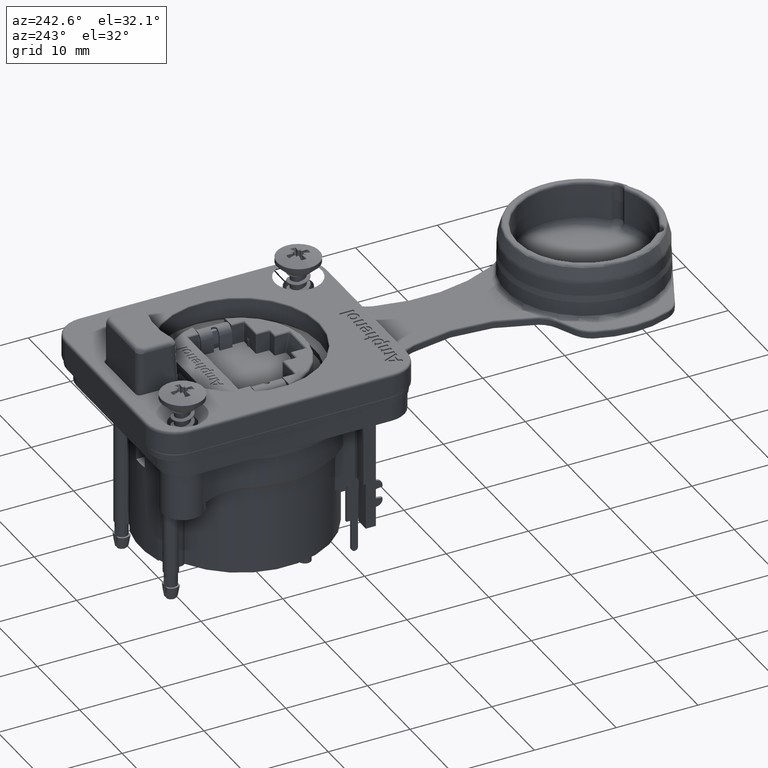
[diagram: clean part render]
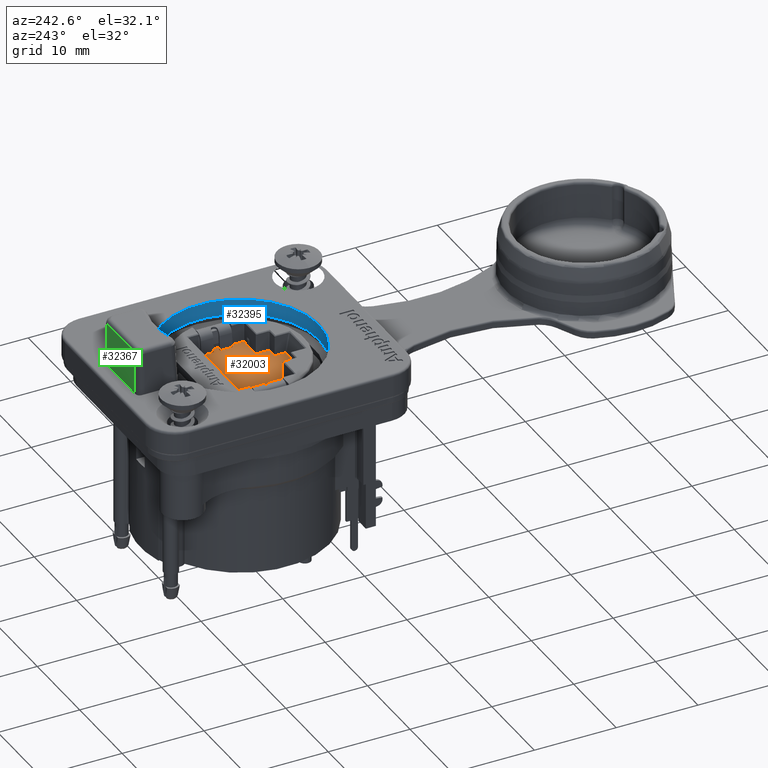
[diagram: same view with three faces highlighted in distinct colors, each labeled with its STEP entity id]
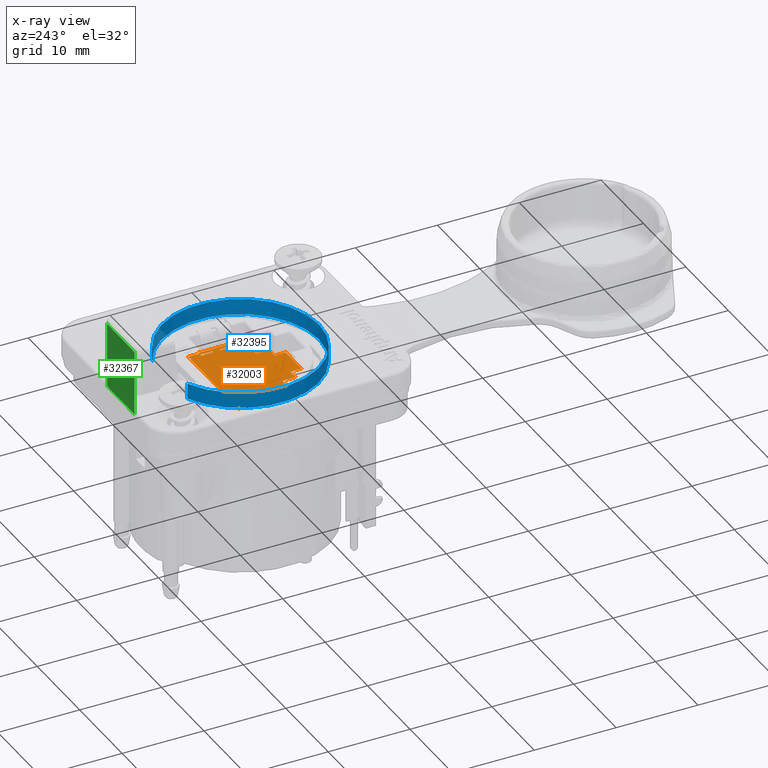
[diagram: x-ray of the same camera — body ghosted, the three highlighted faces saturated]
A machine part, auxiliary view with three faces highlighted in distinct colors.
The next image is the same camera in x-ray (body ghosted, the three faces saturated) — at least one of them is partly hidden behind the body in this view.
Their STEP definitions:

[orange] entity #32003 — the highlighted planar face has unit normal (-0, -0, 1).
#2870=ELLIPSE('',#33870,0.121851193426289,0.12);
#2871=ELLIPSE('',#33871,0.121851193426289,0.12);
#2910=FACE_BOUND('',#4781,.T.);
#2911=FACE_BOUND('',#4782,.T.);
#2912=FACE_BOUND('',#4783,.T.);
#2913=FACE_BOUND('',#4784,.T.);
#2999=FACE_OUTER_BOUND('',#4780,.T.);
#4780=EDGE_LOOP('',(#21763,#21764,#21765,#21766,#21767,#21768,#21769,#21770,
#21771,#21772,#21773,#21774,#21775,#21776,#21777,#21778,#21779,#21780,#21781,
#21782,#21783,#21784,#21785,#21786,#21787,#21788,#21789,#21790,#21791,#21792,
#21793,#21794,#21795,#21796,#21797,#21798,#21799,#21800,#21801));
#4781=EDGE_LOOP('',(#21802,#21803,#21804,#21805));
#4782=EDGE_LOOP('',(#21806,#21807,#21808,#21809));
#4783=EDGE_LOOP('',(#21810,#21811,#21812,#21813));
#4784=EDGE_LOOP('',(#21814,#21815,#21816,#21817));
#8258=LINE('',#43236,#10582);
#8259=LINE('',#43238,#10583);
#8260=LINE('',#43240,#10584);
#8261=LINE('',#43242,#10585);
#8262=LINE('',#43244,#10586);
#8263=LINE('',#43248,#10587);
#8264=LINE('',#43252,#10588);
#8265=LINE('',#43256,#10589);
#8266=LINE('',#43260,#10590);
#8267=LINE('',#43264,#10591);
#8268=LINE('',#43268,#10592);
#8269=LINE('',#43272,#10593);
#8270=LINE('',#43274,#10594);
#8271=LINE('',#43278,#10595);
#8272=LINE('',#43282,#10596);
#8273=LINE('',#43286,#10597);
#8274=LINE('',#43290,#10598);
#8275=LINE('',#43292,#10599);
#8276=LINE('',#43294,#10600);
#8277=LINE('',#43296,#10601);
#8278=LINE('',#43298,#10602);
#8279=LINE('',#43302,#10603);
#8280=LINE('',#43306,#10604);
#8281=LINE('',#43310,#10605);
#8282=LINE('',#43314,#10606);
#8283=LINE('',#43316,#10607);
#8284=LINE('',#43318,#10608);
#8285=LINE('',#43319,#10609);
#8286=LINE('',#43322,#10610);
#8287=LINE('',#43324,#10611);
#8288=LINE('',#43326,#10612);
#8289=LINE('',#43327,#10613);
#8290=LINE('',#43330,#10614);
#8291=LINE('',#43332,#10615);
#8292=LINE('',#43334,#10616);
#8293=LINE('',#43335,#10617);
#8294=LINE('',#43338,#10618);
#8295=LINE('',#43340,#10619);
#8296=LINE('',#43342,#10620);
#8297=LINE('',#43343,#10621);
#10582=VECTOR('',#36131,10.);
#10583=VECTOR('',#36132,10.);
#10584=VECTOR('',#36133,10.);
#10585=VECTOR('',#36134,10.);
#10586=VECTOR('',#36135,10.);
#10587=VECTOR('',#36138,10.);
#10588=VECTOR('',#36141,10.);
#10589=VECTOR('',#36144,10.);
#10590=VECTOR('',#36147,10.);
#10591=VECTOR('',#36150,10.);
#10592=VECTOR('',#36153,10.);
#10593=VECTOR('',#36156,10.);
#10594=VECTOR('',#36157,10.);
#10595=VECTOR('',#36160,10.);
#10596=VECTOR('',#36163,10.);
#10597=VECTOR('',#36166,10.);
#10598=VECTOR('',#36169,10.);
#10599=VECTOR('',#36170,10.);
#10600=VECTOR('',#36171,10.);
#10601=VECTOR('',#36172,10.);
#10602=VECTOR('',#36173,10.);
#10603=VECTOR('',#36176,10.);
#10604=VECTOR('',#36179,10.);
#10605=VECTOR('',#36182,10.);
#10606=VECTOR('',#36185,10.);
#10607=VECTOR('',#36186,10.);
#10608=VECTOR('',#36187,10.);
#10609=VECTOR('',#36188,10.);
#10610=VECTOR('',#36189,10.);
#10611=VECTOR('',#36190,10.);
#10612=VECTOR('',#36191,10.);
#10613=VECTOR('',#36192,10.);
#10614=VECTOR('',#36193,10.);
#10615=VECTOR('',#36194,10.);
#10616=VECTOR('',#36195,10.);
#10617=VECTOR('',#36196,10.);
#10618=VECTOR('',#36197,10.);
#10619=VECTOR('',#36198,10.);
#10620=VECTOR('',#36199,10.);
#10621=VECTOR('',#36200,10.);
#12904=CIRCLE('',#33865,0.12);
#12905=CIRCLE('',#33866,0.6);
#12906=CIRCLE('',#33867,0.12);
#12907=CIRCLE('',#33868,0.12);
#12908=CIRCLE('',#33869,0.12);
#12909=CIRCLE('',#33872,0.12);
#12910=CIRCLE('',#33873,0.12);
#12911=CIRCLE('',#33874,0.6);
#12912=CIRCLE('',#33875,0.12);
#12913=CIRCLE('',#33876,0.12);
#12914=CIRCLE('',#33877,0.3);
#12915=CIRCLE('',#33878,0.3);
#12916=CIRCLE('',#33879,0.12);
#13849=VERTEX_POINT('',#43234);
#13850=VERTEX_POINT('',#43235);
#13851=VERTEX_POINT('',#43237);
#13852=VERTEX_POINT('',#43239);
#13853=VERTEX_POINT('',#43241);
#13854=VERTEX_POINT('',#43243);
#13855=VERTEX_POINT('',#43245);
#13856=VERTEX_POINT('',#43247);
#13857=VERTEX_POINT('',#43249);
#13858=VERTEX_POINT('',#43251);
#13859=VERTEX_POINT('',#43253);
#13860=VERTEX_POINT('',#43255);
#13861=VERTEX_POINT('',#43257);
#13862=VERTEX_POINT('',#43259);
#13863=VERTEX_POINT('',#43261);
#13864=VERTEX_POINT('',#43263);
#13865=VERTEX_POINT('',#43265);
#13866=VERTEX_POINT('',#43267);
#13867=VERTEX_POINT('',#43269);
#13868=VERTEX_POINT('',#43271);
#13869=VERTEX_POINT('',#43273);
#13870=VERTEX_POINT('',#43275);
#13871=VERTEX_POINT('',#43277);
#13872=VERTEX_POINT('',#43279);
#13873=VERTEX_POINT('',#43281);
#13874=VERTEX_POINT('',#43283);
#13875=VERTEX_POINT('',#43285);
#13876=VERTEX_POINT('',#43287);
#13877=VERTEX_POINT('',#43289);
#13878=VERTEX_POINT('',#43291);
#13879=VERTEX_POINT('',#43293);
#13880=VERTEX_POINT('',#43295);
#13881=VERTEX_POINT('',#43297);
#13882=VERTEX_POINT('',#43299);
#13883=VERTEX_POINT('',#43301);
#13884=VERTEX_POINT('',#43303);
#13885=VERTEX_POINT('',#43305);
#13886=VERTEX_POINT('',#43307);
#13887=VERTEX_POINT('',#43309);
#13888=VERTEX_POINT('',#43312);
#13889=VERTEX_POINT('',#43313);
#13890=VERTEX_POINT('',#43315);
#13891=VERTEX_POINT('',#43317);
#13892=VERTEX_POINT('',#43320);
#13893=VERTEX_POINT('',#43321);
#13894=VERTEX_POINT('',#43323);
#13895=VERTEX_POINT('',#43325);
#13896=VERTEX_POINT('',#43328);
#13897=VERTEX_POINT('',#43329);
#13898=VERTEX_POINT('',#43331);
#13899=VERTEX_POINT('',#43333);
#13900=VERTEX_POINT('',#43336);
#13901=VERTEX_POINT('',#43337);
#13902=VERTEX_POINT('',#43339);
#13903=VERTEX_POINT('',#43341);
#16937=EDGE_CURVE('',#13849,#13850,#8258,.T.);
#16938=EDGE_CURVE('',#13851,#13849,#8259,.T.);
#16939=EDGE_CURVE('',#13852,#13851,#8260,.T.);
#16940=EDGE_CURVE('',#13853,#13852,#8261,.T.);
#16941=EDGE_CURVE('',#13854,#13853,#8262,.T.);
#16942=EDGE_CURVE('',#13855,#13854,#12904,.T.);
#16943=EDGE_CURVE('',#13856,#13855,#8263,.T.);
#16944=EDGE_CURVE('',#13857,#13856,#12905,.T.);
#16945=EDGE_CURVE('',#13858,#13857,#8264,.T.);
#16946=EDGE_CURVE('',#13859,#13858,#12906,.T.);
#16947=EDGE_CURVE('',#13860,#13859,#8265,.T.);
#16948=EDGE_CURVE('',#13861,#13860,#12907,.T.);
#16949=EDGE_CURVE('',#13862,#13861,#8266,.T.);
#16950=EDGE_CURVE('',#13863,#13862,#12908,.T.);
#16951=EDGE_CURVE('',#13864,#13863,#8267,.T.);
#16952=EDGE_CURVE('',#13865,#13864,#2870,.T.);
#16953=EDGE_CURVE('',#13866,#13865,#8268,.T.);
#16954=EDGE_CURVE('',#13867,#13866,#2871,.T.);
#16955=EDGE_CURVE('',#13868,#13867,#8269,.T.);
#16956=EDGE_CURVE('',#13869,#13868,#8270,.T.);
#16957=EDGE_CURVE('',#13870,#13869,#12909,.T.);
#16958=EDGE_CURVE('',#13871,#13870,#8271,.T.);
#16959=EDGE_CURVE('',#13872,#13871,#12910,.T.);
#16960=EDGE_CURVE('',#13873,#13872,#8272,.T.);
#16961=EDGE_CURVE('',#13874,#13873,#12911,.T.);
#16962=EDGE_CURVE('',#13875,#13874,#8273,.T.);
#16963=EDGE_CURVE('',#13876,#13875,#12912,.T.);
#16964=EDGE_CURVE('',#13877,#13876,#8274,.T.);
#16965=EDGE_CURVE('',#13878,#13877,#8275,.T.);
#16966=EDGE_CURVE('',#13879,#13878,#8276,.T.);
#16967=EDGE_CURVE('',#13880,#13879,#8277,.T.);
#16968=EDGE_CURVE('',#13881,#13880,#8278,.T.);
#16969=EDGE_CURVE('',#13882,#13881,#12913,.T.);
#16970=EDGE_CURVE('',#13883,#13882,#8279,.T.);
#16971=EDGE_CURVE('',#13884,#13883,#12914,.T.);
#16972=EDGE_CURVE('',#13885,#13884,#8280,.T.);
#16973=EDGE_CURVE('',#13886,#13885,#12915,.T.);
#16974=EDGE_CURVE('',#13887,#13886,#8281,.T.);
#16975=EDGE_CURVE('',#13850,#13887,#12916,.T.);
#16976=EDGE_CURVE('',#13888,#13889,#8282,.T.);
#16977=EDGE_CURVE('',#13890,#13888,#8283,.T.);
#16978=EDGE_CURVE('',#13891,#13890,#8284,.T.);
#16979=EDGE_CURVE('',#13889,#13891,#8285,.T.);
#16980=EDGE_CURVE('',#13892,#13893,#8286,.T.);
#16981=EDGE_CURVE('',#13894,#13892,#8287,.T.);
#16982=EDGE_CURVE('',#13895,#13894,#8288,.T.);
#16983=EDGE_CURVE('',#13893,#13895,#8289,.T.);
#16984=EDGE_CURVE('',#13896,#13897,#8290,.T.);
#16985=EDGE_CURVE('',#13898,#13896,#8291,.T.);
#16986=EDGE_CURVE('',#13899,#13898,#8292,.T.);
#16987=EDGE_CURVE('',#13897,#13899,#8293,.T.);
#16988=EDGE_CURVE('',#13900,#13901,#8294,.T.);
#16989=EDGE_CURVE('',#13902,#13900,#8295,.T.);
#16990=EDGE_CURVE('',#13903,#13902,#8296,.T.);
#16991=EDGE_CURVE('',#13901,#13903,#8297,.T.);
#21763=ORIENTED_EDGE('',*,*,#16937,.F.);
#21764=ORIENTED_EDGE('',*,*,#16938,.F.);
#21765=ORIENTED_EDGE('',*,*,#16939,.F.);
#21766=ORIENTED_EDGE('',*,*,#16940,.F.);
#21767=ORIENTED_EDGE('',*,*,#16941,.F.);
#21768=ORIENTED_EDGE('',*,*,#16942,.F.);
#21769=ORIENTED_EDGE('',*,*,#16943,.F.);
#21770=ORIENTED_EDGE('',*,*,#16944,.F.);
#21771=ORIENTED_EDGE('',*,*,#16945,.F.);
#21772=ORIENTED_EDGE('',*,*,#16946,.F.);
#21773=ORIENTED_EDGE('',*,*,#16947,.F.);
#21774=ORIENTED_EDGE('',*,*,#16948,.F.);
#21775=ORIENTED_EDGE('',*,*,#16949,.F.);
#21776=ORIENTED_EDGE('',*,*,#16950,.F.);
#21777=ORIENTED_EDGE('',*,*,#16951,.F.);
#21778=ORIENTED_EDGE('',*,*,#16952,.F.);
#21779=ORIENTED_EDGE('',*,*,#16953,.F.);
#21780=ORIENTED_EDGE('',*,*,#16954,.F.);
#21781=ORIENTED_EDGE('',*,*,#16955,.F.);
#21782=ORIENTED_EDGE('',*,*,#16956,.F.);
#21783=ORIENTED_EDGE('',*,*,#16957,.F.);
#21784=ORIENTED_EDGE('',*,*,#16958,.F.);
#21785=ORIENTED_EDGE('',*,*,#16959,.F.);
#21786=ORIENTED_EDGE('',*,*,#16960,.F.);
#21787=ORIENTED_EDGE('',*,*,#16961,.F.);
#21788=ORIENTED_EDGE('',*,*,#16962,.F.);
#21789=ORIENTED_EDGE('',*,*,#16963,.F.);
#21790=ORIENTED_EDGE('',*,*,#16964,.F.);
#21791=ORIENTED_EDGE('',*,*,#16965,.F.);
#21792=ORIENTED_EDGE('',*,*,#16966,.F.);
#21793=ORIENTED_EDGE('',*,*,#16967,.F.);
#21794=ORIENTED_EDGE('',*,*,#16968,.F.);
#21795=ORIENTED_EDGE('',*,*,#16969,.F.);
#21796=ORIENTED_EDGE('',*,*,#16970,.F.);
#21797=ORIENTED_EDGE('',*,*,#16971,.F.);
#21798=ORIENTED_EDGE('',*,*,#16972,.F.);
#21799=ORIENTED_EDGE('',*,*,#16973,.F.);
#21800=ORIENTED_EDGE('',*,*,#16974,.F.);
#21801=ORIENTED_EDGE('',*,*,#16975,.F.);
#21802=ORIENTED_EDGE('',*,*,#16976,.F.);
#21803=ORIENTED_EDGE('',*,*,#16977,.F.);
#21804=ORIENTED_EDGE('',*,*,#16978,.F.);
#21805=ORIENTED_EDGE('',*,*,#16979,.F.);
#21806=ORIENTED_EDGE('',*,*,#16980,.F.);
#21807=ORIENTED_EDGE('',*,*,#16981,.F.);
#21808=ORIENTED_EDGE('',*,*,#16982,.F.);
#21809=ORIENTED_EDGE('',*,*,#16983,.F.);
#21810=ORIENTED_EDGE('',*,*,#16984,.F.);
#21811=ORIENTED_EDGE('',*,*,#16985,.F.);
#21812=ORIENTED_EDGE('',*,*,#16986,.F.);
#21813=ORIENTED_EDGE('',*,*,#16987,.F.);
#21814=ORIENTED_EDGE('',*,*,#16988,.F.);
#21815=ORIENTED_EDGE('',*,*,#16989,.F.);
#21816=ORIENTED_EDGE('',*,*,#16990,.F.);
#21817=ORIENTED_EDGE('',*,*,#16991,.F.);
#31272=PLANE('',#33864);
#32003=ADVANCED_FACE('',(#2999,#2910,#2911,#2912,#2913),#31272,.T.);
#33864=AXIS2_PLACEMENT_3D('',#43233,#36129,#36130);
#33865=AXIS2_PLACEMENT_3D('',#43246,#36136,#36137);
#33866=AXIS2_PLACEMENT_3D('',#43250,#36139,#36140);
#33867=AXIS2_PLACEMENT_3D('',#43254,#36142,#36143);
#33868=AXIS2_PLACEMENT_3D('',#43258,#36145,#36146);
#33869=AXIS2_PLACEMENT_3D('',#43262,#36148,#36149);
#33870=AXIS2_PLACEMENT_3D('',#43266,#36151,#36152);
#33871=AXIS2_PLACEMENT_3D('',#43270,#36154,#36155);
#33872=AXIS2_PLACEMENT_3D('',#43276,#36158,#36159);
#33873=AXIS2_PLACEMENT_3D('',#43280,#36161,#36162);
#33874=AXIS2_PLACEMENT_3D('',#43284,#36164,#36165);
#33875=AXIS2_PLACEMENT_3D('',#43288,#36167,#36168);
#33876=AXIS2_PLACEMENT_3D('',#43300,#36174,#36175);
#33877=AXIS2_PLACEMENT_3D('',#43304,#36177,#36178);
#33878=AXIS2_PLACEMENT_3D('',#43308,#36180,#36181);
#33879=AXIS2_PLACEMENT_3D('',#43311,#36183,#36184);
#36129=DIRECTION('center_axis',(-3.5650864753066E-32,-8.32667268468849E-17,
1.));
#36130=DIRECTION('ref_axis',(1.,0.,3.5650864753066E-32));
#36131=DIRECTION('',(-7.16992331441682E-16,1.,8.32667268468849E-17));
#36132=DIRECTION('',(1.,7.16992331441682E-16,9.53524693665317E-32));
#36133=DIRECTION('',(-7.16992331441682E-16,1.,8.32667268468849E-17));
#36134=DIRECTION('',(-1.,-7.16992331441682E-16,-9.53524693665317E-32));
#36135=DIRECTION('',(-7.16992331441682E-16,1.,8.32667268468849E-17));
#36136=DIRECTION('center_axis',(3.5650864753066E-32,8.32667268468849E-17,
-1.));
#36137=DIRECTION('ref_axis',(-0.707106781186547,-0.707106781186548,-6.29239585453216E-17));
#36138=DIRECTION('',(-1.,-7.16992331441682E-16,-9.53524693665317E-32));
#36139=DIRECTION('center_axis',(-3.5650864753066E-32,-8.32667268468849E-17,
1.));
#36140=DIRECTION('ref_axis',(-1.,-7.16992331441682E-16,-5.7211887261095E-18));
#36141=DIRECTION('',(-1.,-7.16992331441682E-16,-9.53524693665317E-32));
#36142=DIRECTION('center_axis',(-3.5650864753066E-32,-8.32667268468849E-17,
1.));
#36143=DIRECTION('ref_axis',(0.707106781186547,0.707106781186548,6.29239585453216E-17));
#36144=DIRECTION('',(-7.16992331441682E-16,1.,8.32667268468849E-17));
#36145=DIRECTION('center_axis',(3.5650864753066E-32,8.32667268468849E-17,
-1.));
#36146=DIRECTION('ref_axis',(-0.707106781186547,-0.707106781186548,-6.29239585453216E-17));
#36147=DIRECTION('',(-1.,-7.16992331441682E-16,-9.53524693665317E-32));
#36148=DIRECTION('center_axis',(-3.5650864753066E-32,-8.32667268468849E-17,
1.));
#36149=DIRECTION('ref_axis',(0.707106781186547,0.707106781186548,6.29239585453216E-17));
#36150=DIRECTION('',(-7.16992331441682E-16,1.,8.32667268468849E-17));
#36151=DIRECTION('center_axis',(3.5650864753066E-32,8.32667268468849E-17,
-1.));
#36152=DIRECTION('ref_axis',(3.84383053906705E-15,-1.,-7.54999622196182E-17));
#36153=DIRECTION('',(-1.,-7.18001131375821E-16,-9.54364688350908E-32));
#36154=DIRECTION('center_axis',(3.5650864753066E-32,8.32667268468849E-17,
-1.));
#36155=DIRECTION('ref_axis',(-5.48101762052154E-15,-1.,-7.54999622196182E-17));
#36156=DIRECTION('',(7.16992331441682E-16,-1.,-8.32667268468849E-17));
#36157=DIRECTION('',(-1.,-7.16992331441682E-16,-9.53524693665317E-32));
#36158=DIRECTION('center_axis',(3.5650864753066E-32,8.32667268468849E-17,
-1.));
#36159=DIRECTION('ref_axis',(0.707106781186548,-0.707106781186547,-5.48329758559615E-17));
#36160=DIRECTION('',(7.16992331441682E-16,-1.,-8.32667268468849E-17));
#36161=DIRECTION('center_axis',(-3.5650864753066E-32,-8.32667268468849E-17,
1.));
#36162=DIRECTION('ref_axis',(-0.707106781186548,0.707106781186547,5.48329758559615E-17));
#36163=DIRECTION('',(-1.,-7.16992331441682E-16,-9.53524693665317E-32));
#36164=DIRECTION('center_axis',(-3.5650864753066E-32,-8.32667268468849E-17,
1.));
#36165=DIRECTION('ref_axis',(-1.,-7.16992331441682E-16,-5.7211887261095E-18));
#36166=DIRECTION('',(-1.,-7.16992331441682E-16,-9.53524693665317E-32));
#36167=DIRECTION('center_axis',(3.5650864753066E-32,8.32667268468849E-17,
-1.));
#36168=DIRECTION('ref_axis',(0.707106781186548,-0.707106781186547,-5.48329758559615E-17));
#36169=DIRECTION('',(7.16992331441682E-16,-1.,-8.32667268468849E-17));
#36170=DIRECTION('',(-1.,-7.16992331441682E-16,-9.53524693665317E-32));
#36171=DIRECTION('',(7.16992331441682E-16,-1.,-8.32667268468849E-17));
#36172=DIRECTION('',(1.,7.16992331441682E-16,9.53524693665317E-32));
#36173=DIRECTION('',(7.16992331441682E-16,-1.,-8.32667268468849E-17));
#36174=DIRECTION('center_axis',(3.5650864753066E-32,8.32667268468849E-17,
-1.));
#36175=DIRECTION('ref_axis',(0.707106781186547,0.707106781186548,6.29239585453216E-17));
#36176=DIRECTION('',(1.,7.16992331441682E-16,9.53524693665317E-32));
#36177=DIRECTION('center_axis',(-3.5650864753066E-32,-8.32667268468849E-17,
1.));
#36178=DIRECTION('ref_axis',(-1.,-7.16992331441682E-16,-5.7211887261095E-18));
#36179=DIRECTION('',(1.,7.16992331441682E-16,9.53524693665317E-32));
#36180=DIRECTION('center_axis',(-3.5650864753066E-32,-8.32667268468849E-17,
1.));
#36181=DIRECTION('ref_axis',(-1.,-7.16992331441682E-16,-5.7211887261095E-18));
#36182=DIRECTION('',(1.,7.16992331441682E-16,9.53524693665317E-32));
#36183=DIRECTION('center_axis',(3.5650864753066E-32,8.32667268468849E-17,
-1.));
#36184=DIRECTION('ref_axis',(-0.707106781186548,0.707106781186547,5.48329758559615E-17));
#36185=DIRECTION('',(-1.,-8.25548267591932E-16,-1.04391566849562E-31));
#36186=DIRECTION('',(7.37120150927571E-16,1.,8.32667268468849E-17));
#36187=DIRECTION('',(1.,-7.34374083767566E-16,-2.54980614834393E-32));
#36188=DIRECTION('',(-7.31628016607562E-16,-1.,-8.32667268468849E-17));
#36189=DIRECTION('',(1.,-9.94361142327483E-16,-4.7146332872273E-32));
#36190=DIRECTION('',(-7.31628016607562E-16,-1.,-8.32667268468849E-17));
#36191=DIRECTION('',(-1.,7.34374083767566E-16,2.54980614834393E-32));
#36192=DIRECTION('',(7.37120150927571E-16,1.,8.32667268468849E-17));
#36193=DIRECTION('',(-1.,8.25548267591677E-16,3.30898373434092E-32));
#36194=DIRECTION('',(-7.31628016607817E-16,1.,8.32667268468849E-17));
#36195=DIRECTION('',(1.,7.34374083767821E-16,9.67997909895925E-32));
#36196=DIRECTION('',(7.37120150927826E-16,-1.,-8.32667268468849E-17));
#36197=DIRECTION('',(1.,9.94361142327738E-16,1.18448062378426E-31));
#36198=DIRECTION('',(7.37120150927826E-16,-1.,-8.32667268468849E-17));
#36199=DIRECTION('',(-1.,-7.34374083767821E-16,-9.67997909895925E-32));
#36200=DIRECTION('',(-7.31628016607817E-16,1.,8.32667268468849E-17));
#43233=CARTESIAN_POINT('Origin',(5.55111512312579E-17,-1.27675647831893E-15,
2.));
#43234=CARTESIAN_POINT('',(-5.96,2.,2.));
#43235=CARTESIAN_POINT('',(-5.96,3.18,2.));
#43236=CARTESIAN_POINT('',(-5.96,1.65,2.));
#43237=CARTESIAN_POINT('',(-6.15,2.,2.));
#43238=CARTESIAN_POINT('',(-2.46730477698356,2.,2.));
#43239=CARTESIAN_POINT('',(-6.15,-2.,2.));
#43240=CARTESIAN_POINT('',(-6.15,0.999999999999995,2.));
#43241=CARTESIAN_POINT('',(-5.96,-2.,2.));
#43242=CARTESIAN_POINT('',(-3.075,-2.,2.));
#43243=CARTESIAN_POINT('',(-5.96,-3.41,2.));
#43244=CARTESIAN_POINT('',(-5.96,1.65,2.));
#43245=CARTESIAN_POINT('',(-5.84,-3.53,2.));
#43246=CARTESIAN_POINT('Origin',(-5.84,-3.41,2.));
#43247=CARTESIAN_POINT('',(-5.31606961258558,-3.53,2.));
#43248=CARTESIAN_POINT('',(-2.98,-3.53,2.));
#43249=CARTESIAN_POINT('',(-4.68393038741442,-3.53,2.));
#43250=CARTESIAN_POINT('Origin',(-5.,-4.04,2.));
#43251=CARTESIAN_POINT('',(-3.22,-3.53,2.));
#43252=CARTESIAN_POINT('',(-2.98,-3.53,2.));
#43253=CARTESIAN_POINT('',(-3.1,-3.65,2.));
#43254=CARTESIAN_POINT('Origin',(-3.22,-3.65,2.));
#43255=CARTESIAN_POINT('',(-3.1,-5.03,2.));
#43256=CARTESIAN_POINT('',(-3.1,-1.765,2.));
#43257=CARTESIAN_POINT('',(-2.98,-5.15,2.));
#43258=CARTESIAN_POINT('Origin',(-2.98,-5.03,2.));
#43259=CARTESIAN_POINT('',(-1.97,-5.15,2.));
#43260=CARTESIAN_POINT('',(-1.55,-5.15,2.));
#43261=CARTESIAN_POINT('',(-1.85,-5.27,2.));
#43262=CARTESIAN_POINT('Origin',(-1.97,-5.27,2.));
#43263=CARTESIAN_POINT('',(-1.85,-6.40435372088437,2.));
#43264=CARTESIAN_POINT('',(-1.85,-2.575,2.));
#43265=CARTESIAN_POINT('',(-1.73,-6.52620491431066,2.));
#43266=CARTESIAN_POINT('Origin',(-1.73,-6.40435372088437,2.));
#43267=CARTESIAN_POINT('',(1.73,-6.52620491431066,2.));
#43268=CARTESIAN_POINT('',(-0.462499999999995,-6.52620491431066,2.));
#43269=CARTESIAN_POINT('',(1.85,-6.40435372088437,2.));
#43270=CARTESIAN_POINT('Origin',(1.73,-6.40435372088437,2.));
#43271=CARTESIAN_POINT('',(1.85,-5.15,2.));
#43272=CARTESIAN_POINT('',(1.85,-3.1,2.));
#43273=CARTESIAN_POINT('',(2.98,-5.15,2.));
#43274=CARTESIAN_POINT('',(-1.55,-5.15,2.));
#43275=CARTESIAN_POINT('',(3.1,-5.03,2.));
#43276=CARTESIAN_POINT('Origin',(2.98,-5.03,2.));
#43277=CARTESIAN_POINT('',(3.1,-3.65,2.));
#43278=CARTESIAN_POINT('',(3.1,-2.575,2.));
#43279=CARTESIAN_POINT('',(3.22,-3.53,2.));
#43280=CARTESIAN_POINT('Origin',(3.22,-3.65,2.));
#43281=CARTESIAN_POINT('',(4.68393038741442,-3.53,2.));
#43282=CARTESIAN_POINT('',(-2.98,-3.53,2.));
#43283=CARTESIAN_POINT('',(5.31606961258558,-3.53,2.));
#43284=CARTESIAN_POINT('Origin',(5.,-4.04,2.));
#43285=CARTESIAN_POINT('',(5.84,-3.53,2.));
#43286=CARTESIAN_POINT('',(-2.98,-3.53,2.));
#43287=CARTESIAN_POINT('',(5.96,-3.41,2.));
#43288=CARTESIAN_POINT('Origin',(5.84,-3.41,2.));
#43289=CARTESIAN_POINT('',(5.96,-2.,2.));
#43290=CARTESIAN_POINT('',(5.96,-1.765,2.));
#43291=CARTESIAN_POINT('',(6.15,-2.,2.));
#43292=CARTESIAN_POINT('',(2.58483484862939,-2.,2.));
#43293=CARTESIAN_POINT('',(6.15,2.,2.));
#43294=CARTESIAN_POINT('',(6.15,-0.999999999999996,2.));
#43295=CARTESIAN_POINT('',(5.96,2.,2.));
#43296=CARTESIAN_POINT('',(3.075,2.,2.));
#43297=CARTESIAN_POINT('',(5.96,3.18,2.));
#43298=CARTESIAN_POINT('',(5.96,-1.765,2.));
#43299=CARTESIAN_POINT('',(5.84,3.3,2.));
#43300=CARTESIAN_POINT('Origin',(5.84,3.18,2.));
#43301=CARTESIAN_POINT('',(5.71424285285628,3.3,2.));
#43302=CARTESIAN_POINT('',(2.98,3.3,2.));
#43303=CARTESIAN_POINT('',(5.28575714714371,3.3,2.));
#43304=CARTESIAN_POINT('Origin',(5.5,3.51,2.));
#43305=CARTESIAN_POINT('',(-5.28575714714372,3.3,2.));
#43306=CARTESIAN_POINT('',(2.98,3.3,2.));
#43307=CARTESIAN_POINT('',(-5.71424285285629,3.3,2.));
#43308=CARTESIAN_POINT('Origin',(-5.5,3.51,2.));
#43309=CARTESIAN_POINT('',(-5.84,3.3,2.));
#43310=CARTESIAN_POINT('',(2.98,3.3,2.));
#43311=CARTESIAN_POINT('Origin',(-5.84,3.18,2.));
#43312=CARTESIAN_POINT('',(5.75106909012948,-0.375000000000003,2.));
#43313=CARTESIAN_POINT('',(5.50011413074365,-0.375000000000003,2.));
#43314=CARTESIAN_POINT('',(3.07500000000001,-0.375000000000005,2.));
#43315=CARTESIAN_POINT('',(5.75106909012948,-1.9,2.));
#43316=CARTESIAN_POINT('',(5.75106909012948,-4.95277052029281E-15,2.));
#43317=CARTESIAN_POINT('',(5.50011413074365,-1.9,2.));
#43318=CARTESIAN_POINT('',(2.69744320484065,-1.9,2.));
#43319=CARTESIAN_POINT('',(5.50011413074365,-4.75344396782905E-15,2.));
#43320=CARTESIAN_POINT('',(5.50011413074365,0.374999999999996,2.));
#43321=CARTESIAN_POINT('',(5.75106909012948,0.374999999999995,2.));
#43322=CARTESIAN_POINT('',(2.27431854196796,0.374999999999999,2.));
#43323=CARTESIAN_POINT('',(5.50011413074365,1.9,2.));
#43324=CARTESIAN_POINT('',(5.50011413074365,-4.75344396782905E-15,2.));
#43325=CARTESIAN_POINT('',(5.75106909012949,1.9,2.));
#43326=CARTESIAN_POINT('',(2.92449407949011,1.9,2.));
#43327=CARTESIAN_POINT('',(5.75106909012948,-4.95277052029281E-15,2.));
#43328=CARTESIAN_POINT('',(-5.50011413074365,-0.375000000000003,2.));
#43329=CARTESIAN_POINT('',(-5.75106909012948,-0.375000000000003,2.));
#43330=CARTESIAN_POINT('',(-3.07500000000001,-0.375000000000005,2.));
#43331=CARTESIAN_POINT('',(-5.50011413074365,-1.9,2.));
#43332=CARTESIAN_POINT('',(-5.50011413074365,-4.75344396783045E-15,2.));
#43333=CARTESIAN_POINT('',(-5.75106909012948,-1.9,2.));
#43334=CARTESIAN_POINT('',(-2.69744320484065,-1.9,2.));
#43335=CARTESIAN_POINT('',(-5.75106909012948,-4.95277052029427E-15,2.));
#43336=CARTESIAN_POINT('',(-5.75106909012948,0.374999999999995,2.));
#43337=CARTESIAN_POINT('',(-5.50011413074365,0.374999999999996,2.));
#43338=CARTESIAN_POINT('',(-2.27431854196796,0.374999999999999,2.));
#43339=CARTESIAN_POINT('',(-5.75106909012949,1.9,2.));
#43340=CARTESIAN_POINT('',(-5.75106909012948,-4.95277052029427E-15,2.));
#43341=CARTESIAN_POINT('',(-5.50011413074365,1.9,2.));
#43342=CARTESIAN_POINT('',(-2.92449407949011,1.9,2.));
#43343=CARTESIAN_POINT('',(-5.50011413074365,-4.75344396783045E-15,2.));

[blue] entity #32395 — the highlighted cylindrical surface (partial cylindrical patch) has radius 9.6 mm, axis along (0, 0, -1).
#620=CYLINDRICAL_SURFACE('',#34489,9.6);
#3391=FACE_OUTER_BOUND('',#5198,.T.);
#5198=EDGE_LOOP('',(#23794,#23795,#23796,#23797));
#8830=LINE('',#47534,#11154);
#8831=LINE('',#47536,#11155);
#11154=VECTOR('',#37951,10.);
#11155=VECTOR('',#37954,10.);
#13209=CIRCLE('',#34461,9.6);
#13221=CIRCLE('',#34479,9.6);
#14560=VERTEX_POINT('',#47457);
#14561=VERTEX_POINT('',#47470);
#14572=VERTEX_POINT('',#47515);
#14573=VERTEX_POINT('',#47517);
#18006=EDGE_CURVE('',#14560,#14561,#13209,.T.);
#18024=EDGE_CURVE('',#14572,#14573,#13221,.T.);
#18033=EDGE_CURVE('',#14573,#14560,#8830,.T.);
#18034=EDGE_CURVE('',#14561,#14572,#8831,.T.);
#23794=ORIENTED_EDGE('',*,*,#18024,.F.);
#23795=ORIENTED_EDGE('',*,*,#18034,.F.);
#23796=ORIENTED_EDGE('',*,*,#18006,.F.);
#23797=ORIENTED_EDGE('',*,*,#18033,.F.);
#32395=ADVANCED_FACE('',(#3391),#620,.F.);
#34461=AXIS2_PLACEMENT_3D('',#47471,#37887,#37888);
#34479=AXIS2_PLACEMENT_3D('',#47518,#37928,#37929);
#34489=AXIS2_PLACEMENT_3D('',#47535,#37952,#37953);
#37887=DIRECTION('center_axis',(-3.5650864753066E-32,-8.32667268468849E-17,
1.));
#37888=DIRECTION('ref_axis',(1.,-2.71834567430179E-16,1.30160900793161E-32));
#37928=DIRECTION('center_axis',(3.5650864753066E-32,8.32667268468849E-17,
-1.));
#37929=DIRECTION('ref_axis',(-4.55531587302282E-16,-1.,-8.32667268468849E-17));
#37951=DIRECTION('',(3.5650864753066E-32,8.32667268468849E-17,-1.));
#37952=DIRECTION('center_axis',(3.5650864753066E-32,8.32667268468849E-17,
-1.));
#37953=DIRECTION('ref_axis',(-2.10602227472812E-16,-1.,-8.32667268468849E-17));
#37954=DIRECTION('',(-3.5650864753066E-32,-8.32667268468849E-17,1.));
#47457=CARTESIAN_POINT('',(-4.16,8.6518437341413,3.81961524227067));
#47470=CARTESIAN_POINT('',(4.16,8.65184373414129,3.81961524227067));
#47471=CARTESIAN_POINT('Origin',(-1.71635661783284E-17,-3.1804685903835E-16,
3.81961524227066));
#47515=CARTESIAN_POINT('',(4.16,8.65184373414129,5.75));
#47517=CARTESIAN_POINT('',(-4.16,8.6518437341413,5.75));
#47518=CARTESIAN_POINT('Origin',(-1.71635661783284E-17,-4.78783679369588E-16,
5.75));
#47534=CARTESIAN_POINT('',(-4.16,8.6518437341413,5.9));
#47535=CARTESIAN_POINT('Origin',(-1.71635661783284E-17,-4.91273688396621E-16,
5.9));
#47536=CARTESIAN_POINT('',(4.16,8.65184373414129,5.9));

[green] entity #32367 — the highlighted planar face has unit normal (0, 1, 0).
#3363=FACE_OUTER_BOUND('',#5170,.T.);
#5170=EDGE_LOOP('',(#23654,#23655,#23656,#23657));
#8339=LINE('',#43515,#10663);
#8801=LINE('',#47186,#11125);
#8806=LINE('',#47336,#11130);
#8808=LINE('',#47340,#11132);
#10663=VECTOR('',#36328,10.);
#11125=VECTOR('',#37790,10.);
#11130=VECTOR('',#37821,10.);
#11132=VECTOR('',#37827,10.);
#13981=VERTEX_POINT('',#43512);
#13982=VERTEX_POINT('',#43514);
#14535=VERTEX_POINT('',#47178);
#14537=VERTEX_POINT('',#47184);
#17071=EDGE_CURVE('',#13981,#13982,#8339,.T.);
#17950=EDGE_CURVE('',#14537,#14535,#8801,.T.);
#17971=EDGE_CURVE('',#14535,#13981,#8806,.T.);
#17973=EDGE_CURVE('',#13982,#14537,#8808,.T.);
#23654=ORIENTED_EDGE('',*,*,#17950,.F.);
#23655=ORIENTED_EDGE('',*,*,#17973,.F.);
#23656=ORIENTED_EDGE('',*,*,#17071,.F.);
#23657=ORIENTED_EDGE('',*,*,#17971,.F.);
#31422=PLANE('',#34438);
#32367=ADVANCED_FACE('',(#3363),#31422,.T.);
#34438=AXIS2_PLACEMENT_3D('',#47341,#37828,#37829);
#36328=DIRECTION('',(1.,-2.71834567430179E-16,1.0347042606835E-17));
#37790=DIRECTION('',(-1.,2.71834567430179E-16,-1.0347042606835E-17));
#37821=DIRECTION('',(1.03470426068351E-17,8.32667268468849E-17,-1.));
#37827=DIRECTION('',(-1.03470426068351E-17,-8.32667268468849E-17,1.));
#37828=DIRECTION('center_axis',(2.71834567430179E-16,1.,8.32667268468849E-17));
#37829=DIRECTION('ref_axis',(1.03470426068351E-17,8.32667268468849E-17,
-1.));
#43512=CARTESIAN_POINT('',(-3.25,14.6,3.));
#43514=CARTESIAN_POINT('',(3.25,14.6,3.));
#43515=CARTESIAN_POINT('',(-2.025,14.6,3.));
#47178=CARTESIAN_POINT('',(-3.25,14.6,11.));
#47184=CARTESIAN_POINT('',(3.25,14.6,11.));
#47186=CARTESIAN_POINT('',(-2.025,14.6,11.));
#47336=CARTESIAN_POINT('',(-3.25,14.6,3.));
#47340=CARTESIAN_POINT('',(3.25,14.6,3.));
#47341=CARTESIAN_POINT('Origin',(-4.05,14.6,3.));